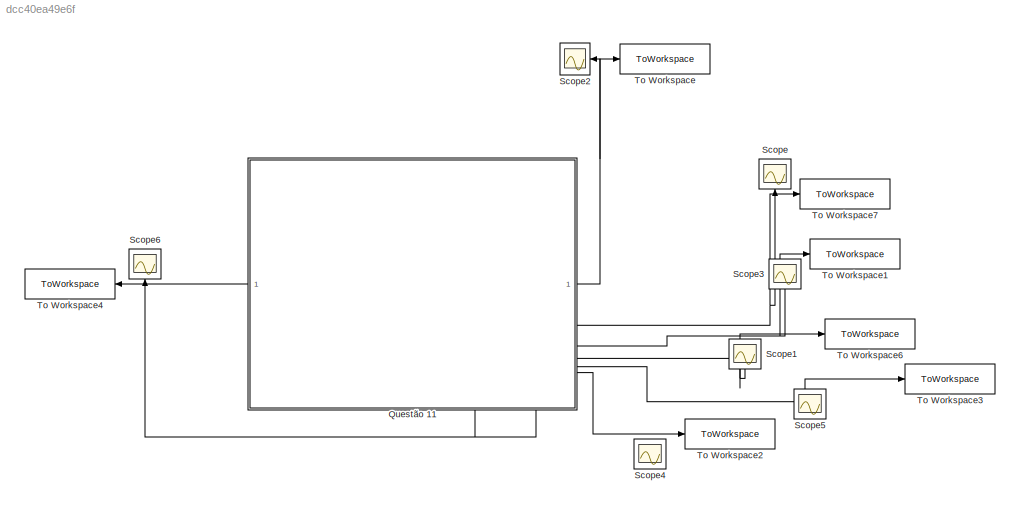
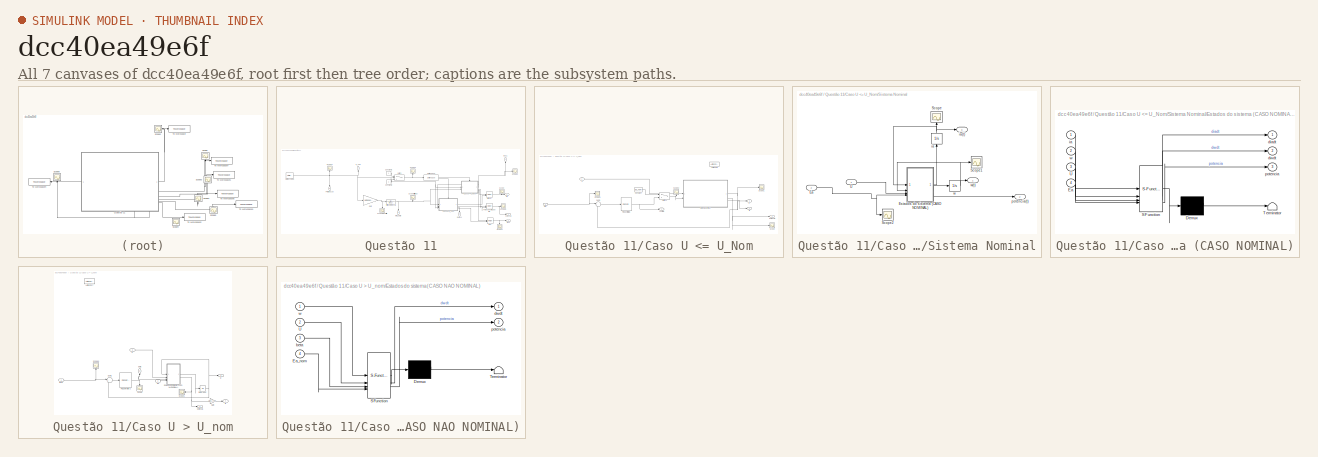
[diagram: thumbnail index - all 7 canvases of the model, root first then tree order]
MODEL slx_dcc40ea49e6f
KIND model
CONFIG AbsTol = auto
CONFIG EnableMultiTasking = off
CONFIG FixedStep = auto
CONFIG MaxStep = auto
CONFIG MinStep = auto
CONFIG RelTol = 1e-3
CONFIG SampleTimeConstraint = Unconstrained
CONFIG SolverName = VariableStepAuto
CONFIG StartTime = 0.0
CONFIG StopTime = 8*20
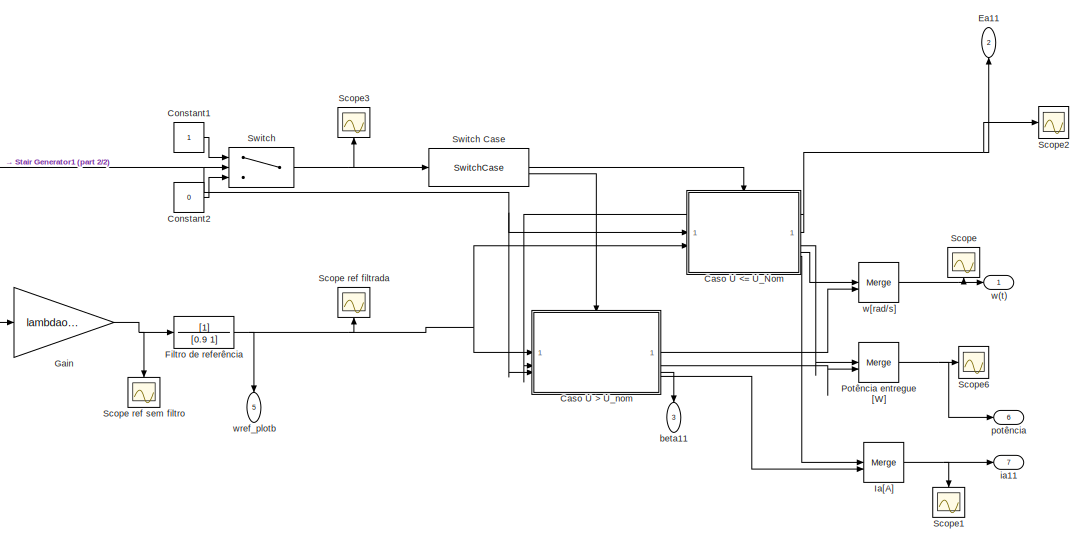
[diagram: Questão 11 - part 1/2, center side, full height]
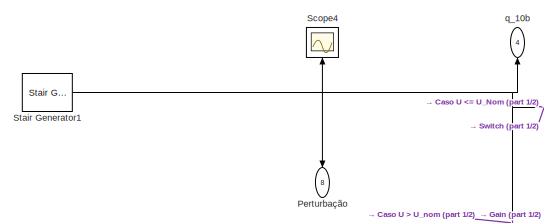
[diagram: Questão 11 - part 2/2, middle left region]
BLOCK [SubSystem] Questão 11
  PortSchema = {"entries":[{"content":{"sides":[{"content":{"connectorIds":["Out7","Out8"]},"type":"ConnectorPlacement.EquallySpacedRectSide","uuid":"401302fa-d1f5-4c54-ac19-93177bd2e6b7"},{"content":{"connectorIds":["Out1","Out2","Out3","Out4","Out5","Out6"],"side":"RIGHT"},"type":"ConnectorPlacement.EquallySpacedRectSide","uuid":"3aac9436-5ff9-48c5-9773-0e70a06b410f"},{"content":{"side":"TOP"},"type":"Connecto...<+265ch>
BLOCK [SubSystem] Questão 11/Caso U <= U_Nom
  TreatAsAtomicUnit = on
BLOCK [ActionPort] Questão 11/Caso U <= U_Nom/Action Port
  ActionPortLabel = case [ 0 ]:
BLOCK [Constant] Questão 11/Caso U <= U_Nom/Constant
  Value = Ea_nom
BLOCK [Reference] Questão 11/Caso U <= U_Nom/PID Controller1  REF=slpidlib/PID Controller
  LibrarySourceBlock = simulink/Continuous/PID Controller
  SourceBlock = slpidlib/PID Controller
  SourceType = PID 1dof
BLOCK [Scope] Questão 11/Caso U <= U_Nom/Scope
  Floating = off
  NumInputPorts = 1
  ScopeSpecificationString = Simulink.scopes.TimeScopeBlockCfg('CurrentConfiguration', extmgr.ConfigurationSet(extmgr.Configuration('Core','General UI',true),extmgr.Configuration('Core','Source UI',true),extmgr.Configuration('Sources','WiredSimulink',true,'DataLoggingVariableName','ScopeData4'),extmgr.Configuration('Visuals','Time Domain',true,'SerializedDisplays',{struct('MinYLimReal','-540715.18821','MaxYLimReal','4450036.5...<+1754ch>
BLOCK [Scope] Questão 11/Caso U <= U_Nom/Scope1
  Floating = off
  NumInputPorts = 1
  ScopeSpecificationString = Simulink.scopes.TimeScopeBlockCfg('CurrentConfiguration', extmgr.ConfigurationSet(extmgr.Configuration('Core','General UI',true),extmgr.Configuration('Core','Source UI',true),extmgr.Configuration('Sources','WiredSimulink',true,'DataLoggingVariableName','ScopeData4'),extmgr.Configuration('Visuals','Time Domain',true,'SerializedDisplays',{struct('MinYLimReal','-0.05893','MaxYLimReal','1.14038','YLab...<+1376ch>
BLOCK [Scope] Questão 11/Caso U <= U_Nom/Scope2
  Floating = off
  NameLocation = right
  NumInputPorts = 1
  ScopeSpecificationString = Simulink.scopes.TimeScopeBlockCfg('CurrentConfiguration', extmgr.ConfigurationSet(extmgr.Configuration('Core','General UI',true),extmgr.Configuration('Core','Source UI',true),extmgr.Configuration('Sources','WiredSimulink',true,'DataLoggingVariableName','ScopeData10'),extmgr.Configuration('Visuals','Time Domain',true,'SerializedDisplays',{struct('MinYLimReal','-204.63114','MaxYLimReal','1841.68026'...<+1816ch>
BLOCK [Scope] Questão 11/Caso U <= U_Nom/Scope3
  Floating = off
  NumInputPorts = 1
  ScopeSpecificationString = Simulink.scopes.TimeScopeBlockCfg('CurrentConfiguration', extmgr.ConfigurationSet(extmgr.Configuration('Core','General UI',true),extmgr.Configuration('Core','Source UI',true),extmgr.Configuration('Sources','WiredSimulink',true,'DataLoggingVariableName','ScopeData11'),extmgr.Configuration('Visuals','Time Domain',true,'SerializedDisplays',{struct('MinYLimReal','-0.12757','MaxYLimReal','1.14816','YLa...<+1704ch>
BLOCK [SubSystem] Questão 11/Caso U <= U_Nom/Sistema Nominal
BLOCK [Inport] Questão 11/Caso U <= U_Nom/Sistema Nominal/Ea
  Port = 2
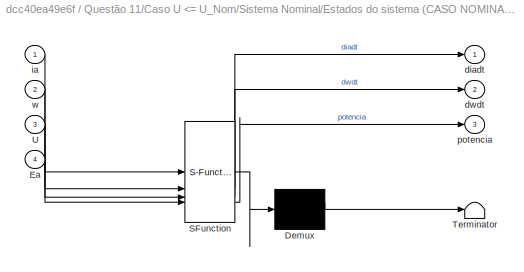
BLOCK [SubSystem] Questão 11/Caso U <= U_Nom/Sistema Nominal/Estados do sistema (CASO NOMINAL)
  ErrorFcn = Stateflow.Translate.translate
  LibrarySourceBlock = simulink/User-Defined\nFunctions/MATLAB Function
  PermitHierarchicalResolution = ExplicitOnly
  SFBlockType = MATLAB Function
  TreatAsAtomicUnit = on
BLOCK [Demux] Questão 11/Caso U <= U_Nom/Sistema Nominal/Estados do sistema (CASO NOMINAL)/ Demux 
  Outputs = 1
BLOCK [S-Function] Questão 11/Caso U <= U_Nom/Sistema Nominal/Estados do sistema (CASO NOMINAL)/ SFunction 
  EnableBusSupport = on
  FunctionName = sf_sfun
  Parameters = A,Cpmax0,J,La,Ra,b,kv,rho
  PortCounts = [4 4]
  SFcnIsStateOwnerBlock = off
  SFunctionDeploymentMode = off
  Tag = Stateflow S-Function 3
BLOCK [Terminator] Questão 11/Caso U <= U_Nom/Sistema Nominal/Estados do sistema (CASO NOMINAL)/ Terminator 
BLOCK [Inport] Questão 11/Caso U <= U_Nom/Sistema Nominal/Estados do sistema (CASO NOMINAL)/Ea
  Port = 4
BLOCK [Inport] Questão 11/Caso U <= U_Nom/Sistema Nominal/Estados do sistema (CASO NOMINAL)/U
  Port = 3
BLOCK [Outport] Questão 11/Caso U <= U_Nom/Sistema Nominal/Estados do sistema (CASO NOMINAL)/diadt
BLOCK [Outport] Questão 11/Caso U <= U_Nom/Sistema Nominal/Estados do sistema (CASO NOMINAL)/dwdt
  Port = 2
BLOCK [Inport] Questão 11/Caso U <= U_Nom/Sistema Nominal/Estados do sistema (CASO NOMINAL)/ia
BLOCK [Outport] Questão 11/Caso U <= U_Nom/Sistema Nominal/Estados do sistema (CASO NOMINAL)/potencia
  Port = 3
BLOCK [Inport] Questão 11/Caso U <= U_Nom/Sistema Nominal/Estados do sistema (CASO NOMINAL)/w
  Port = 2
BLOCK [Scope] Questão 11/Caso U <= U_Nom/Sistema Nominal/Scope
  Floating = off
  NameLocation = right
  NumInputPorts = 1
  ScopeSpecificationString = Simulink.scopes.TimeScopeBlockCfg('CurrentConfiguration', extmgr.ConfigurationSet(extmgr.Configuration('Core','General UI',true),extmgr.Configuration('Core','Source UI',true),extmgr.Configuration('Sources','WiredSimulink',true,'DataLoggingVariableName','ScopeData4'),extmgr.Configuration('Visuals','Time Domain',true,'SerializedDisplays',{struct('MinYLimReal','-438.66801','MaxYLimReal','2749.42957',...<+1682ch>
BLOCK [Scope] Questão 11/Caso U <= U_Nom/Sistema Nominal/Scope1
  Floating = off
  NumInputPorts = 1
  ScopeSpecificationString = Simulink.scopes.TimeScopeBlockCfg('CurrentConfiguration', extmgr.ConfigurationSet(extmgr.Configuration('Core','General UI',true),extmgr.Configuration('Core','Source UI',true),extmgr.Configuration('Sources','WiredSimulink',true,'DataLoggingVariableName','ScopeData8'),extmgr.Configuration('Visuals','Time Domain',true,'SerializedDisplays',{struct('MinYLimReal','-0.05832','MaxYLimReal','1.13491','YLab...<+1731ch>
BLOCK [Scope] Questão 11/Caso U <= U_Nom/Sistema Nominal/Scope2
  Floating = off
  NumInputPorts = 1
  ScopeSpecificationString = Simulink.scopes.TimeScopeBlockCfg('CurrentConfiguration', extmgr.ConfigurationSet(extmgr.Configuration('Core','General UI',true),extmgr.Configuration('Core','Source UI',true),extmgr.Configuration('Sources','WiredSimulink',true,'DataLoggingVariableName','ScopeData8'),extmgr.Configuration('Visuals','Time Domain',true,'SerializedDisplays',{struct('MinYLimReal','-17006318128069816330929588142195824750...<+2311ch>
BLOCK [Inport] Questão 11/Caso U <= U_Nom/Sistema Nominal/U
BLOCK [Integrator] Questão 11/Caso U <= U_Nom/Sistema Nominal/ia
  InitialCondition = 1
  NameLocation = right
BLOCK [Outport] Questão 11/Caso U <= U_Nom/Sistema Nominal/ia(t)
  Port = 3
BLOCK [Outport] Questão 11/Caso U <= U_Nom/Sistema Nominal/potência(t)
  Port = 2
BLOCK [Integrator] Questão 11/Caso U <= U_Nom/Sistema Nominal/w
  InitialCondition = 6.1e-2
BLOCK [Outport] Questão 11/Caso U <= U_Nom/Sistema Nominal/w(t)
BLOCK [Sum] Questão 11/Caso U <= U_Nom/Sum3
  Inputs = |+-
BLOCK [Switch] Questão 11/Caso U <= U_Nom/Switch1
  InputSameDT = off
  SaturateOnIntegerOverflow = off
  Threshold = 1
BLOCK [Inport] Questão 11/Caso U <= U_Nom/U
BLOCK [Outport] Questão 11/Caso U <= U_Nom/controle
BLOCK [Outport] Questão 11/Caso U <= U_Nom/ia
  Port = 4
BLOCK [Outport] Questão 11/Caso U <= U_Nom/potência
  Port = 2
BLOCK [Outport] Questão 11/Caso U <= U_Nom/w
  Port = 3
BLOCK [Inport] Questão 11/Caso U <= U_Nom/wref
  Port = 2
BLOCK [SubSystem] Questão 11/Caso U > U_nom
  TreatAsAtomicUnit = on
BLOCK [ActionPort] Questão 11/Caso U > U_nom/Action Port
  ActionPortLabel = case [ 1 ]:
BLOCK [Inport] Questão 11/Caso U > U_nom/Ea
  Port = 2
BLOCK [SubSystem] Questão 11/Caso U > U_nom/Estados do sistema(CASO NAO NOMINAL)
  ErrorFcn = Stateflow.Translate.translate
  LibrarySourceBlock = simulink/User-Defined\nFunctions/MATLAB Function
  PermitHierarchicalResolution = ExplicitOnly
  SFBlockType = MATLAB Function
  TreatAsAtomicUnit = on
BLOCK [Demux] Questão 11/Caso U > U_nom/Estados do sistema(CASO NAO NOMINAL)/ Demux 
  Outputs = 1
BLOCK [S-Function] Questão 11/Caso U > U_nom/Estados do sistema(CASO NAO NOMINAL)/ SFunction 
  EnableBusSupport = on
  FunctionName = sf_sfun
  Parameters = A,J,b,ia_nom,kv,lambdaopt,rho
  PortCounts = [4 3]
  SFcnIsStateOwnerBlock = off
  SFunctionDeploymentMode = off
  Tag = Stateflow S-Function 5
BLOCK [Terminator] Questão 11/Caso U > U_nom/Estados do sistema(CASO NAO NOMINAL)/ Terminator 
BLOCK [Inport] Questão 11/Caso U > U_nom/Estados do sistema(CASO NAO NOMINAL)/Ea_nom
  Port = 4
BLOCK [Inport] Questão 11/Caso U > U_nom/Estados do sistema(CASO NAO NOMINAL)/U
  Port = 2
BLOCK [Inport] Questão 11/Caso U > U_nom/Estados do sistema(CASO NAO NOMINAL)/beta
  Port = 3
BLOCK [Outport] Questão 11/Caso U > U_nom/Estados do sistema(CASO NAO NOMINAL)/dwdt
BLOCK [Outport] Questão 11/Caso U > U_nom/Estados do sistema(CASO NAO NOMINAL)/potencia
  Port = 2
BLOCK [Inport] Questão 11/Caso U > U_nom/Estados do sistema(CASO NAO NOMINAL)/w
BLOCK [Gain] Questão 11/Caso U > U_nom/Gain
  Gain = 1/Ea_nom
BLOCK [Reference] Questão 11/Caso U > U_nom/PID Controller2  REF=slpidlib/PID Controller
  LibrarySourceBlock = simulink/Continuous/PID Controller
  SourceBlock = slpidlib/PID Controller
  SourceType = PID 1dof
BLOCK [Scope] Questão 11/Caso U > U_nom/Scope
  Floating = off
  NameLocation = left
  NumInputPorts = 1
  ScopeSpecificationString = Simulink.scopes.TimeScopeBlockCfg('CurrentConfiguration', extmgr.ConfigurationSet(extmgr.Configuration('Core','General UI',true),extmgr.Configuration('Core','Source UI',true),extmgr.Configuration('Sources','WiredSimulink',true,'DataLoggingVariableName','ScopeData6'),extmgr.Configuration('Visuals','Time Domain',true,'SerializedDisplays',{struct('MinYLimReal','-0.01692','MaxYLimReal','0.26356','YLab...<+1374ch>
BLOCK [Scope] Questão 11/Caso U > U_nom/Scope1
  Floating = off
  NameLocation = top
  NumInputPorts = 1
  ScopeSpecificationString = Simulink.scopes.TimeScopeBlockCfg('CurrentConfiguration', extmgr.ConfigurationSet(extmgr.Configuration('Core','General UI',true),extmgr.Configuration('Core','Source UI',true),extmgr.Configuration('Sources','WiredSimulink',true,'DataLoggingVariableName','ScopeData7'),extmgr.Configuration('Visuals','Time Domain',true,'SerializedDisplays',{struct('MinYLimReal','3200000.00000','MaxYLimReal','5200000.0...<+1450ch>
BLOCK [Scope] Questão 11/Caso U > U_nom/Scope3
  Floating = off
  NameLocation = right
  NumInputPorts = 1
  ScopeSpecificationString = Simulink.scopes.TimeScopeBlockCfg('CurrentConfiguration', extmgr.ConfigurationSet(extmgr.Configuration('Core','General UI',true),extmgr.Configuration('Core','Source UI',true),extmgr.Configuration('Sources','WiredSimulink',true,'DataLoggingVariableName','ScopeData12'),extmgr.Configuration('Visuals','Time Domain',true,'SerializedDisplays',{struct('MinYLimReal','0.89306','MaxYLimReal','2.16835','YLab...<+1389ch>
BLOCK [Sum] Questão 11/Caso U > U_nom/Sum1
  Inputs = |+-
BLOCK [Inport] Questão 11/Caso U > U_nom/U
  Port = 3
BLOCK [Outport] Questão 11/Caso U > U_nom/beta
  NameLocation = right
  Port = 3
BLOCK [Outport] Questão 11/Caso U > U_nom/ia
  Port = 4
BLOCK [Integrator] Questão 11/Caso U > U_nom/integrador
  InitialCondition = w_nom
BLOCK [Outport] Questão 11/Caso U > U_nom/potência
  Port = 2
BLOCK [Outport] Questão 11/Caso U > U_nom/w
BLOCK [Inport] Questão 11/Caso U > U_nom/wref
BLOCK [Constant] Questão 11/Constant1
BLOCK [Constant] Questão 11/Constant2
  Value = 0
BLOCK [Outport] Questão 11/Ea11
  NameLocation = right
  Port = 2
BLOCK [TransferFcn] Questão 11/Filtro de referência
  Denominator = [0.9 1]
BLOCK [Gain] Questão 11/Gain
  Gain = lambdaopt/R
BLOCK [Merge] Questão 11/Ia[A]
BLOCK [Outport] Questão 11/Perturbação
  NameLocation = left
  Port = 8
BLOCK [Merge] Questão 11/Potência entregue [W]
BLOCK [Scope] Questão 11/Scope
  Floating = off
  NameLocation = right
  NumInputPorts = 1
  ScopeSpecificationString = Simulink.scopes.TimeScopeBlockCfg('CurrentConfiguration', extmgr.ConfigurationSet(extmgr.Configuration('Core','General UI',true),extmgr.Configuration('Core','Source UI',true),extmgr.Configuration('Sources','WiredSimulink',true,'DataLoggingVariableName','ScopeData4'),extmgr.Configuration('Visuals','Time Domain',true,'SerializedDisplays',{struct('MinYLimReal','-0.18648','MaxYLimReal','2.28829','YLab...<+1394ch>
BLOCK [Scope] Questão 11/Scope ref filtrada
  Floating = off
  NameLocation = right
  NumInputPorts = 1
  ScopeSpecificationString = Simulink.scopes.TimeScopeBlockCfg('CurrentConfiguration', extmgr.ConfigurationSet(extmgr.Configuration('Core','General UI',true),extmgr.Configuration('Core','Source UI',true),extmgr.Configuration('Sources','WiredSimulink',true,'DataLoggingVariableName','ScopeData13'),extmgr.Configuration('Visuals','Time Domain',true,'SerializedDisplays',{struct('MinYLimReal','-0.2551','MaxYLimReal','2.29592','YLab...<+1511ch>
BLOCK [Scope] Questão 11/Scope ref sem filtro
  Floating = off
  NameLocation = left
  NumInputPorts = 1
  ScopeSpecificationString = Simulink.scopes.TimeScopeBlockCfg('CurrentConfiguration', extmgr.ConfigurationSet(extmgr.Configuration('Core','General UI',true),extmgr.Configuration('Core','Source UI',true),extmgr.Configuration('Sources','WiredSimulink',true,'DataLoggingVariableName','ScopeData3'),extmgr.Configuration('Visuals','Time Domain',true,'SerializedDisplays',{struct('MinYLimReal','0.08929','MaxYLimReal','2.25765','YLabe...<+1423ch>
BLOCK [Scope] Questão 11/Scope1
  Floating = off
  NameLocation = left
  NumInputPorts = 1
  ScopeSpecificationString = Simulink.scopes.TimeScopeBlockCfg('CurrentConfiguration', extmgr.ConfigurationSet(extmgr.Configuration('Core','General UI',true),extmgr.Configuration('Core','Source UI',true),extmgr.Configuration('Sources','WiredSimulink',true,'DataLoggingVariableName','ScopeData4'),extmgr.Configuration('Visuals','Time Domain',true,'SerializedDisplays',{struct('MinYLimReal','-519.15791','MaxYLimReal','3473.83864',...<+1453ch>
BLOCK [Scope] Questão 11/Scope2
  Floating = off
  NumInputPorts = 1
  ScopeSpecificationString = Simulink.scopes.TimeScopeBlockCfg('CurrentConfiguration', extmgr.ConfigurationSet(extmgr.Configuration('Core','General UI',true),extmgr.Configuration('Core','Source UI',true),extmgr.Configuration('Sources','WiredSimulink',true,'DataLoggingVariableName','ScopeData5'),extmgr.Configuration('Visuals','Time Domain',true,'SerializedDisplays',{struct('MinYLimReal','-204.63114','MaxYLimReal','1841.68026',...<+1747ch>
BLOCK [Scope] Questão 11/Scope3
  Floating = off
  NameLocation = right
  NumInputPorts = 1
  ScopeSpecificationString = Simulink.scopes.TimeScopeBlockCfg('CurrentConfiguration', extmgr.ConfigurationSet(extmgr.Configuration('Core','General UI',true),extmgr.Configuration('Core','Source UI',true),extmgr.Configuration('Sources','WiredSimulink',true,'DataLoggingVariableName','ScopeData3'),extmgr.Configuration('Visuals','Time Domain',true,'SerializedDisplays',{struct('MinYLimReal','-0.125','MaxYLimReal','1.125','YLabelRe...<+1417ch>
BLOCK [Scope] Questão 11/Scope4
  Floating = off
  NameLocation = right
  NumInputPorts = 1
  ScopeSpecificationString = Simulink.scopes.TimeScopeBlockCfg('CurrentConfiguration', extmgr.ConfigurationSet(extmgr.Configuration('Core','General UI',true),extmgr.Configuration('Core','Source UI',true),extmgr.Configuration('Sources','WiredSimulink',true,'DataLoggingVariableName','ScopeData2'),extmgr.Configuration('Visuals','Time Domain',true,'SerializedDisplays',{struct('MinYLimReal','0.875','MaxYLimReal','22.125','YLabelRe...<+1688ch>
BLOCK [Scope] Questão 11/Scope6
  Floating = off
  NumInputPorts = 1
  ScopeSpecificationString = Simulink.scopes.TimeScopeBlockCfg('CurrentConfiguration', extmgr.ConfigurationSet(extmgr.Configuration('Core','General UI',true),extmgr.Configuration('Core','Source UI',true),extmgr.Configuration('Sources','WiredSimulink',true,'DataLoggingVariableName','ScopeData9'),extmgr.Configuration('Visuals','Time Domain',true,'SerializedDisplays',{struct('MinYLimReal','-547337.89153','MaxYLimReal','4509640.8...<+1493ch>
BLOCK [Reference] Questão 11/Stair Generator1  REF=spsStairGeneratorLib/Stair
Generator
  LibrarySourceBlock = sps_lib/Sources/Signal Generator Sources/Stair\nGenerator
  SourceBlock = spsStairGeneratorLib/Stair\nGenerator
  SourceType = Stair Generator
BLOCK [Switch] Questão 11/Switch
  Criteria = u2 > Threshold
  InputSameDT = off
  SaturateOnIntegerOverflow = off
  Threshold = U_nom
BLOCK [SwitchCase] Questão 11/Switch Case
  CaseConditions = {0, [1]}
  ShowDefaultCase = off
BLOCK [Outport] Questão 11/beta11
  NameLocation = left
  Port = 3
BLOCK [Outport] Questão 11/ia11
  Port = 7
BLOCK [Outport] Questão 11/potência
  Port = 6
BLOCK [Outport] Questão 11/q_10b
  NameLocation = right
  Port = 4
BLOCK [Outport] Questão 11/w(t)
BLOCK [Merge] Questão 11/w[rad//s]
BLOCK [Outport] Questão 11/wref_plotb
  NameLocation = left
  Port = 5
BLOCK [Scope] Scope
  Floating = off
  NameLocation = right
  NumInputPorts = 1
  ScopeSpecificationString = Simulink.scopes.TimeScopeBlockCfg('CurrentConfiguration', extmgr.ConfigurationSet(extmgr.Configuration('Core','General UI',true),extmgr.Configuration('Core','Source UI',true),extmgr.Configuration('Sources','WiredSimulink',true,'DataLoggingVariableName','ScopeData1'),extmgr.Configuration('Visuals','Time Domain',true,'SerializedDisplays',{struct('MinYLimReal','-204.63114','MaxYLimReal','1841.68026',...<+1742ch>
BLOCK [Scope] Scope1
  Floating = off
  NameLocation = left
  NumInputPorts = 1
  ScopeSpecificationString = Simulink.scopes.TimeScopeBlockCfg('CurrentConfiguration', extmgr.ConfigurationSet(extmgr.Configuration('Core','General UI',true),extmgr.Configuration('Core','Source UI',true),extmgr.Configuration('Sources','WiredSimulink',true,'DataLoggingVariableName','ScopeData2'),extmgr.Configuration('Visuals','Time Domain',true,'SerializedDisplays',{struct('MinYLimReal','0.875','MaxYLimReal','22.125','YLabelRe...<+1357ch>
BLOCK [Scope] Scope2
  Floating = off
  NumInputPorts = 1
  ScopeSpecificationString = Simulink.scopes.TimeScopeBlockCfg('CurrentConfiguration', extmgr.ConfigurationSet(extmgr.Configuration('Core','General UI',true,'FigureColor',[1 1 1]),extmgr.Configuration('Core','Source UI',true),extmgr.Configuration('Sources','WiredSimulink',true,'DataLoggingVariableName','ScopeData8'),extmgr.Configuration('Visuals','Time Domain',true,'SerializedDisplays',{struct('MinYLimReal','-0.18648','MaxYLi...<+1692ch>
BLOCK [Scope] Scope3
  Floating = off
  NameLocation = left
  NumInputPorts = 1
  ScopeSpecificationString = Simulink.scopes.TimeScopeBlockCfg('CurrentConfiguration', extmgr.ConfigurationSet(extmgr.Configuration('Core','General UI',true),extmgr.Configuration('Core','Source UI',true),extmgr.Configuration('Sources','WiredSimulink',true,'DataLoggingVariableName','ScopeData14'),extmgr.Configuration('Visuals','Time Domain',true,'SerializedDisplays',{struct('MinYLimReal','-0.02944','MaxYLimReal','0.26495','YLa...<+1372ch>
BLOCK [Scope] Scope4
  Floating = off
  NameLocation = left
  NumInputPorts = 1
  ScopeSpecificationString = Simulink.scopes.TimeScopeBlockCfg('CurrentConfiguration', extmgr.ConfigurationSet(extmgr.Configuration('Core','General UI',true,'FigureColor',[1 1 1]),extmgr.Configuration('Core','Source UI',true),extmgr.Configuration('Sources','WiredSimulink',true,'DataLoggingVariableName','ScopeData15'),extmgr.Configuration('Visuals','Time Domain',true,'SerializedDisplays',{struct('MinYLimReal','0.46025','MaxYLi...<+1692ch>
BLOCK [Scope] Scope5
  Floating = off
  NameLocation = left
  NumInputPorts = 1
  ScopeSpecificationString = Simulink.scopes.TimeScopeBlockCfg('CurrentConfiguration', extmgr.ConfigurationSet(extmgr.Configuration('Core','General UI',true,'FigureColor',[1 1 1]),extmgr.Configuration('Core','Source UI',true),extmgr.Configuration('Sources','WiredSimulink',true,'DataLoggingVariableName','ScopeData7'),extmgr.Configuration('Visuals','Time Domain',true,'SerializedDisplays',{struct('MinYLimReal','0.46025','MaxYLim...<+1691ch>
BLOCK [Scope] Scope6
  Floating = off
  NameLocation = right
  NumInputPorts = 1
  ScopeSpecificationString = Simulink.scopes.TimeScopeBlockCfg('CurrentConfiguration', extmgr.ConfigurationSet(extmgr.Configuration('Core','General UI',true),extmgr.Configuration('Core','Source UI',true),extmgr.Configuration('Sources','WiredSimulink',true,'DataLoggingVariableName','ScopeData16'),extmgr.Configuration('Visuals','Time Domain',true,'SerializedDisplays',{struct('MinYLimReal','-455.53953','MaxYLimReal','2901.27319'...<+1390ch>
BLOCK [ToWorkspace] To Workspace
  FixptAsFi = on
  MaxDataPoints = inf
  NameLocation = top
  SampleTime = -1
  Save2DSignal = 2-D array (concatenate along first dimension)
  VariableName = w11
BLOCK [ToWorkspace] To Workspace1
  FixptAsFi = on
  MaxDataPoints = inf
  SampleTime = -1
  Save2DSignal = 2-D array (concatenate along first dimension)
  VariableName = beta11
BLOCK [ToWorkspace] To Workspace2
  FixptAsFi = on
  MaxDataPoints = inf
  SampleTime = -1
  Save2DSignal = 2-D array (concatenate along first dimension)
  VariableName = potencia11
BLOCK [ToWorkspace] To Workspace3
  FixptAsFi = on
  MaxDataPoints = inf
  SampleTime = -1
  Save2DSignal = 2-D array (concatenate along first dimension)
  VariableName = w_ref11
BLOCK [ToWorkspace] To Workspace4
  FixptAsFi = on
  MaxDataPoints = inf
  NameLocation = top
  SampleTime = -1
  Save2DSignal = 2-D array (concatenate along first dimension)
  VariableName = ia11
BLOCK [ToWorkspace] To Workspace6
  FixptAsFi = on
  MaxDataPoints = inf
  SampleTime = -1
  Save2DSignal = 2-D array (concatenate along first dimension)
  VariableName = perturbacao11
BLOCK [ToWorkspace] To Workspace7
  FixptAsFi = on
  MaxDataPoints = inf
  SampleTime = -1
  Save2DSignal = 2-D array (concatenate along first dimension)
  VariableName = Ea11
LINE Questão 11/Caso U <= U_Nom/Constant:1 -> Questão 11/Caso U <= U_Nom/Switch1:1
NET Questão 11/Caso U <= U_Nom/PID Controller1:1 -> Questão 11/Caso U <= U_Nom/Switch1:3, Questão 11/Caso U <= U_Nom/controle:1
NET Questão 11/Caso U <= U_Nom/Sistema Nominal/Ea:1 -> Questão 11/Caso U <= U_Nom/Sistema Nominal/Estados do sistema (CASO NOMINAL):4, Questão 11/Caso U <= U_Nom/Sistema Nominal/Scope2:1
LINE Questão 11/Caso U <= U_Nom/Sistema Nominal/Estados do sistema (CASO NOMINAL):1 -> Questão 11/Caso U <= U_Nom/Sistema Nominal/ia:1
LINE Questão 11/Caso U <= U_Nom/Sistema Nominal/Estados do sistema (CASO NOMINAL):2 -> Questão 11/Caso U <= U_Nom/Sistema Nominal/w:1
LINE Questão 11/Caso U <= U_Nom/Sistema Nominal/Estados do sistema (CASO NOMINAL):3 -> Questão 11/Caso U <= U_Nom/Sistema Nominal/potência(t):1
LINE Questão 11/Caso U <= U_Nom/Sistema Nominal/U:1 -> Questão 11/Caso U <= U_Nom/Sistema Nominal/Estados do sistema (CASO NOMINAL):3
NET Questão 11/Caso U <= U_Nom/Sistema Nominal/ia:1 -> Questão 11/Caso U <= U_Nom/Sistema Nominal/Estados do sistema (CASO NOMINAL):1, Questão 11/Caso U <= U_Nom/Sistema Nominal/Scope:1, Questão 11/Caso U <= U_Nom/Sistema Nominal/ia(t):1
NET Questão 11/Caso U <= U_Nom/Sistema Nominal/w:1 -> Questão 11/Caso U <= U_Nom/Sistema Nominal/Estados do sistema (CASO NOMINAL):2, Questão 11/Caso U <= U_Nom/Sistema Nominal/Scope1:1, Questão 11/Caso U <= U_Nom/Sistema Nominal/w(t):1
NET Questão 11/Caso U <= U_Nom/Sistema Nominal:1 -> Questão 11/Caso U <= U_Nom/Scope1:1, Questão 11/Caso U <= U_Nom/Sum3:2, Questão 11/Caso U <= U_Nom/w:1
NET Questão 11/Caso U <= U_Nom/Sistema Nominal:2 -> Questão 11/Caso U <= U_Nom/Scope:1, Questão 11/Caso U <= U_Nom/potência:1
LINE Questão 11/Caso U <= U_Nom/Sistema Nominal:3 -> Questão 11/Caso U <= U_Nom/ia:1
LINE Questão 11/Caso U <= U_Nom/Sum3:1 -> Questão 11/Caso U <= U_Nom/PID Controller1:1
NET Questão 11/Caso U <= U_Nom/Switch1:1 -> Questão 11/Caso U <= U_Nom/Scope2:1, Questão 11/Caso U <= U_Nom/Sistema Nominal:2
LINE Questão 11/Caso U <= U_Nom/U:1 -> Questão 11/Caso U <= U_Nom/Sistema Nominal:1
NET Questão 11/Caso U <= U_Nom/wref:1 -> Questão 11/Caso U <= U_Nom/Scope3:1, Questão 11/Caso U <= U_Nom/Sum3:1
NET Questão 11/Caso U <= U_Nom:1 -> Questão 11/Caso U > U_nom:2, Questão 11/Ea11:1, Questão 11/Scope2:1
LINE Questão 11/Caso U <= U_Nom:2 -> Questão 11/Potência entregue [W]:1
LINE Questão 11/Caso U <= U_Nom:3 -> Questão 11/w[rad//s]:1
LINE Questão 11/Caso U <= U_Nom:4 -> Questão 11/Ia[A]:1
LINE Questão 11/Caso U > U_nom/Ea:1 -> Questão 11/Caso U > U_nom/Estados do sistema(CASO NAO NOMINAL):4
LINE Questão 11/Caso U > U_nom/Estados do sistema(CASO NAO NOMINAL):1 -> Questão 11/Caso U > U_nom/integrador:1
NET Questão 11/Caso U > U_nom/Estados do sistema(CASO NAO NOMINAL):2 -> Questão 11/Caso U > U_nom/Gain:1, Questão 11/Caso U > U_nom/Scope1:1, Questão 11/Caso U > U_nom/potência:1
LINE Questão 11/Caso U > U_nom/Gain:1 -> Questão 11/Caso U > U_nom/ia:1
NET Questão 11/Caso U > U_nom/PID Controller2:1 -> Questão 11/Caso U > U_nom/Estados do sistema(CASO NAO NOMINAL):3, Questão 11/Caso U > U_nom/Scope:1, Questão 11/Caso U > U_nom/beta:1
LINE Questão 11/Caso U > U_nom/Sum1:1 -> Questão 11/Caso U > U_nom/PID Controller2:1
LINE Questão 11/Caso U > U_nom/U:1 -> Questão 11/Caso U > U_nom/Estados do sistema(CASO NAO NOMINAL):2
NET Questão 11/Caso U > U_nom/integrador:1 -> Questão 11/Caso U > U_nom/Estados do sistema(CASO NAO NOMINAL):1, Questão 11/Caso U > U_nom/Sum1:2, Questão 11/Caso U > U_nom/w:1
NET Questão 11/Caso U > U_nom/wref:1 -> Questão 11/Caso U > U_nom/Scope3:1, Questão 11/Caso U > U_nom/Sum1:1
LINE Questão 11/Caso U > U_nom:1 -> Questão 11/w[rad//s]:2
LINE Questão 11/Caso U > U_nom:2 -> Questão 11/Potência entregue [W]:2
LINE Questão 11/Caso U > U_nom:3 -> Questão 11/beta11:1
LINE Questão 11/Caso U > U_nom:4 -> Questão 11/Ia[A]:2
LINE Questão 11/Constant1:1 -> Questão 11/Switch:1
LINE Questão 11/Constant2:1 -> Questão 11/Switch:3
NET Questão 11/Filtro de referência:1 -> Questão 11/Caso U <= U_Nom:2, Questão 11/Caso U > U_nom:1, Questão 11/Scope ref filtrada:1, Questão 11/wref_plotb:1
NET Questão 11/Gain:1 -> Questão 11/Filtro de referência:1, Questão 11/Scope ref sem filtro:1
NET Questão 11/Ia[A]:1 -> Questão 11/Scope1:1, Questão 11/ia11:1
NET Questão 11/Potência entregue [W]:1 -> Questão 11/Scope6:1, Questão 11/potência:1
NET Questão 11/Stair Generator1:1 -> Questão 11/Caso U <= U_Nom:1, Questão 11/Caso U > U_nom:3, Questão 11/Gain:1, Questão 11/Perturbação:1, Questão 11/Scope4:1, Questão 11/Switch:2, Questão 11/q_10b:1
LINE Questão 11/Switch Case:1 -> Questão 11/Caso U <= U_Nom:ifaction
LINE Questão 11/Switch Case:2 -> Questão 11/Caso U > U_nom:ifaction
NET Questão 11/Switch:1 -> Questão 11/Scope3:1, Questão 11/Switch Case:1
NET Questão 11/w[rad//s]:1 -> Questão 11/Scope:1, Questão 11/w(t):1
NET Questão 11:1 -> Scope2:1, To Workspace:1
NET Questão 11:2 -> Scope:1, To Workspace7:1
NET Questão 11:3 -> Scope3:1, To Workspace1:1
NET Questão 11:4 -> Scope1:1, To Workspace6:1
NET Questão 11:5 -> Scope5:1, To Workspace3:1
LINE Questão 11:6 -> To Workspace2:1
NET Questão 11:7 -> Scope6:1, To Workspace4:1
note: NET lines group one-source signal fan-out (src -> all destinations, sorted); 1:1 wires keep LINE
CHART Questão 11/Caso U <= U_Nom/Sistema Nominal/Estados do sistema (CASO NOMINAL) states=1 transitions=1
  STATE_LABEL 'eML_blk_kernel()'
  STATE_LABEL 'SCRIPT:\nfunction [diadt, dwdt, potencia] = fcn(ia, w, U, Ra, J, Cpmax0, A, b, kv, La, rho, Ea)\n\n\n\ndiadt = (1/La) * (kv*w - Ra*ia - Ea);\ndwdt = (1/J) * ((Cpmax0*0.5*rho*A*U^3)/w - b*w - kv*ia);\npotencia = Ea*ia;\n'
CHART Questão 11/Caso U > U_nom/Estados do sistema(CASO NAO NOMINAL) states=1 transitions=1
  STATE_LABEL 'eML_blk_kernel()'
  STATE_LABEL 'SCRIPT:\nfunction [dwdt, potencia]  = fcn(w, U, J, A, b, kv, rho, beta, lambdaopt, ia_nom, Ea_nom)\n\n\nCp = (0.44 - 0.167*beta)*sin((pi*lambdaopt)/(15 - 0.3*beta)) - 0.16*lambdaopt*beta;\n\ndwdt = (1/J) * ((Cp*0.5*rho*A*U^3)/w - b*w - kv*ia_nom);\n\npotencia = Ea_nom*ia_nom;\n\n\n\n'
CHART  states=0 transitions=0
CHART  states=0 transitions=0
